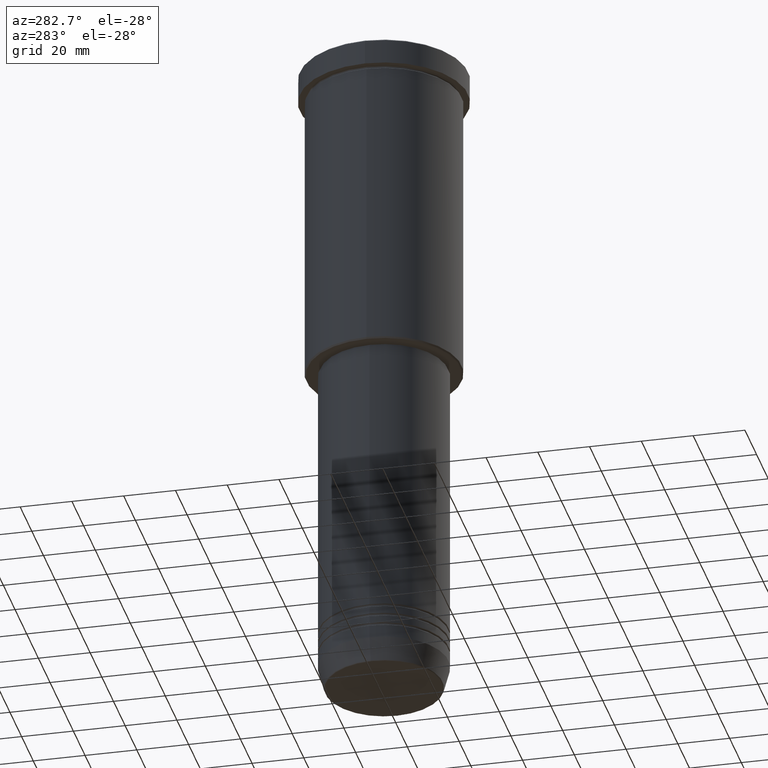
[diagram: clean part render]
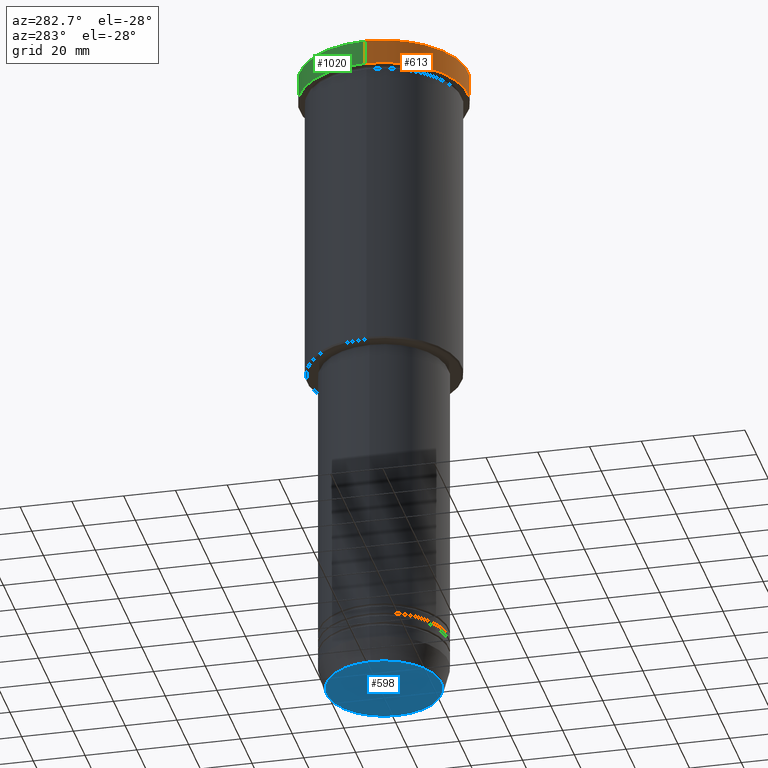
[diagram: same view with three faces highlighted in distinct colors, each labeled with its STEP entity id]
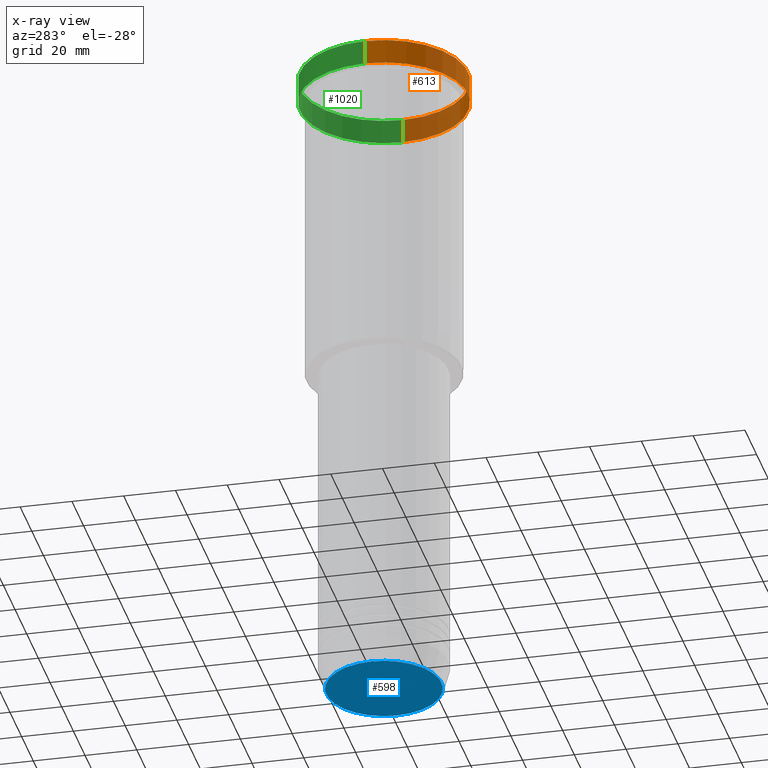
[diagram: x-ray of the same camera — body ghosted, the three highlighted faces saturated]
A machine part, auxiliary view with three faces highlighted in distinct colors.
The next image is the same camera in x-ray (body ghosted, the three faces saturated) — at least one of them is partly hidden behind the body in this view.
Their STEP definitions:

[orange] entity #613 — the highlighted cylindrical surface (partial cylindrical patch) has radius 32.5 mm, axis along (-0, -0, 1).
#14 = VERTEX_POINT ( 'NONE', #193 ) ;
#24 = LINE ( 'NONE', #1012, #587 ) ;
#26 = VERTEX_POINT ( 'NONE', #484 ) ;
#48 = EDGE_CURVE ( 'NONE', #110, #596, #24, .T. ) ;
#53 = FACE_OUTER_BOUND ( 'NONE', #467, .T. ) ;
#82 = DIRECTION ( 'NONE',  ( 1.000000000000000000, 0.000000000000000000, 0.000000000000000000 ) ) ;
#110 = VERTEX_POINT ( 'NONE', #271 ) ;
#130 = CIRCLE ( 'NONE', #900, 32.50000000000000000 ) ;
#193 = CARTESIAN_POINT ( 'NONE',  ( -32.50000000000000000, 3.980102097228898626E-15, -0.4999999999999726885 ) ) ;
#250 = DIRECTION ( 'NONE',  ( -0.000000000000000000, -0.000000000000000000, 1.000000000000000000 ) ) ;
#271 = CARTESIAN_POINT ( 'NONE',  ( 32.50000000000000000, 0.000000000000000000, -9.999999999999992895 ) ) ;
#321 = DIRECTION ( 'NONE',  ( -0.000000000000000000, -0.000000000000000000, 1.000000000000000000 ) ) ;
#328 = CARTESIAN_POINT ( 'NONE',  ( 0.000000000000000000, 0.000000000000000000, 0.000000000000000000 ) ) ;
#368 = DIRECTION ( 'NONE',  ( -0.000000000000000000, -0.000000000000000000, 1.000000000000000000 ) ) ;
#398 = VECTOR ( 'NONE', #250, 1000.000000000000000 ) ;
#400 = EDGE_CURVE ( 'NONE', #596, #14, #1002, .T. ) ;
#460 = LINE ( 'NONE', #818, #398 ) ;
#467 = EDGE_LOOP ( 'NONE', ( #944, #1083, #679, #1033 ) ) ;
#484 = CARTESIAN_POINT ( 'NONE',  ( -32.50000000000000000, 3.980102097228898626E-15, -9.999999999999992895 ) ) ;
#587 = VECTOR ( 'NONE', #368, 1000.000000000000000 ) ;
#596 = VERTEX_POINT ( 'NONE', #910 ) ;
#613 = ADVANCED_FACE ( 'NONE', ( #53 ), #1150, .T. ) ;
#679 = ORIENTED_EDGE ( 'NONE', *, *, #48, .T. ) ;
#710 = CARTESIAN_POINT ( 'NONE',  ( 0.000000000000000000, 0.000000000000000000, -9.999999999999992895 ) ) ;
#765 = EDGE_CURVE ( 'NONE', #26, #14, #460, .T. ) ;
#782 = DIRECTION ( 'NONE',  ( -0.000000000000000000, -0.000000000000000000, 1.000000000000000000 ) ) ;
#818 = CARTESIAN_POINT ( 'NONE',  ( -32.50000000000000000, 3.980102097228898626E-15, 0.000000000000000000 ) ) ;
#871 = DIRECTION ( 'NONE',  ( 1.000000000000000000, 0.000000000000000000, 0.000000000000000000 ) ) ;
#900 = AXIS2_PLACEMENT_3D ( 'NONE', #710, #321, #871 ) ;
#907 = DIRECTION ( 'NONE',  ( 0.000000000000000000, 0.000000000000000000, -1.000000000000000000 ) ) ;
#910 = CARTESIAN_POINT ( 'NONE',  ( 32.50000000000000000, 0.000000000000000000, -0.4999999999999726885 ) ) ;
#944 = ORIENTED_EDGE ( 'NONE', *, *, #765, .F. ) ;
#968 = AXIS2_PLACEMENT_3D ( 'NONE', #328, #782, #977 ) ;
#977 = DIRECTION ( 'NONE',  ( 1.000000000000000000, 0.000000000000000000, 0.000000000000000000 ) ) ;
#993 = CARTESIAN_POINT ( 'NONE',  ( 0.000000000000000000, 0.000000000000000000, -0.4999999999999726885 ) ) ;
#1002 = CIRCLE ( 'NONE', #1139, 32.50000000000000000 ) ;
#1012 = CARTESIAN_POINT ( 'NONE',  ( 32.50000000000000000, 0.000000000000000000, 0.000000000000000000 ) ) ;
#1033 = ORIENTED_EDGE ( 'NONE', *, *, #400, .T. ) ;
#1083 = ORIENTED_EDGE ( 'NONE', *, *, #1108, .T. ) ;
#1108 = EDGE_CURVE ( 'NONE', #26, #110, #130, .T. ) ;
#1139 = AXIS2_PLACEMENT_3D ( 'NONE', #993, #907, #82 ) ;
#1150 = CYLINDRICAL_SURFACE ( 'NONE', #968, 32.50000000000000000 ) ;

[blue] entity #598 — the highlighted planar face has unit normal (0, -0, 1).
#140 = DIRECTION ( 'NONE',  ( 1.000000000000000000, 0.000000000000000000, 0.000000000000000000 ) ) ;
#162 = EDGE_CURVE ( 'NONE', #390, #247, #1082, .T. ) ;
#196 = CARTESIAN_POINT ( 'NONE',  ( 0.000000000000000000, 0.000000000000000000, -260.0000000000000000 ) ) ;
#233 = DIRECTION ( 'NONE',  ( 0.000000000000000000, 0.000000000000000000, -1.000000000000000000 ) ) ;
#247 = VERTEX_POINT ( 'NONE', #953 ) ;
#260 = AXIS2_PLACEMENT_3D ( 'NONE', #196, #841, #1123 ) ;
#390 = VERTEX_POINT ( 'NONE', #1169 ) ;
#406 = ORIENTED_EDGE ( 'NONE', *, *, #162, .T. ) ;
#503 = ORIENTED_EDGE ( 'NONE', *, *, #929, .T. ) ;
#525 = AXIS2_PLACEMENT_3D ( 'NONE', #941, #233, #140 ) ;
#527 = AXIS2_PLACEMENT_3D ( 'NONE', #879, #1140, #1118 ) ;
#598 = ADVANCED_FACE ( 'NONE', ( #755 ), #936, .F. ) ;
#755 = FACE_OUTER_BOUND ( 'NONE', #1024, .T. ) ;
#841 = DIRECTION ( 'NONE',  ( 0.000000000000000000, 0.000000000000000000, -1.000000000000000000 ) ) ;
#879 = CARTESIAN_POINT ( 'NONE',  ( 0.000000000000000000, 0.000000000000000000, -260.0000000000000000 ) ) ;
#929 = EDGE_CURVE ( 'NONE', #247, #390, #1006, .T. ) ;
#936 = PLANE ( 'NONE',  #527 ) ;
#941 = CARTESIAN_POINT ( 'NONE',  ( 0.000000000000000000, 0.000000000000000000, -260.0000000000000000 ) ) ;
#953 = CARTESIAN_POINT ( 'NONE',  ( -22.20479377413040467, 2.748875911406054788E-15, -260.0000000000000000 ) ) ;
#1006 = CIRCLE ( 'NONE', #260, 22.20479377413040467 ) ;
#1024 = EDGE_LOOP ( 'NONE', ( #406, #503 ) ) ;
#1082 = CIRCLE ( 'NONE', #525, 22.20479377413040467 ) ;
#1118 = DIRECTION ( 'NONE',  ( 1.000000000000000000, 0.000000000000000000, 0.000000000000000000 ) ) ;
#1123 = DIRECTION ( 'NONE',  ( 1.000000000000000000, 0.000000000000000000, 0.000000000000000000 ) ) ;
#1140 = DIRECTION ( 'NONE',  ( 0.000000000000000000, -0.000000000000000000, 1.000000000000000000 ) ) ;
#1169 = CARTESIAN_POINT ( 'NONE',  ( 22.20479377413040467, 0.000000000000000000, -260.0000000000000000 ) ) ;

[green] entity #1020 — the highlighted cylindrical surface (partial cylindrical patch) has radius 32.5 mm, axis along (-0, -0, 1).
#13 = DIRECTION ( 'NONE',  ( 1.000000000000000000, 0.000000000000000000, 0.000000000000000000 ) ) ;
#14 = VERTEX_POINT ( 'NONE', #193 ) ;
#24 = LINE ( 'NONE', #1012, #587 ) ;
#26 = VERTEX_POINT ( 'NONE', #484 ) ;
#48 = EDGE_CURVE ( 'NONE', #110, #596, #24, .T. ) ;
#83 = EDGE_CURVE ( 'NONE', #110, #26, #1101, .T. ) ;
#88 = EDGE_LOOP ( 'NONE', ( #1162, #170, #1059, #614 ) ) ;
#110 = VERTEX_POINT ( 'NONE', #271 ) ;
#170 = ORIENTED_EDGE ( 'NONE', *, *, #765, .T. ) ;
#193 = CARTESIAN_POINT ( 'NONE',  ( -32.50000000000000000, 3.980102097228898626E-15, -0.4999999999999726885 ) ) ;
#206 = DIRECTION ( 'NONE',  ( 1.000000000000000000, 0.000000000000000000, 0.000000000000000000 ) ) ;
#250 = DIRECTION ( 'NONE',  ( -0.000000000000000000, -0.000000000000000000, 1.000000000000000000 ) ) ;
#271 = CARTESIAN_POINT ( 'NONE',  ( 32.50000000000000000, 0.000000000000000000, -9.999999999999992895 ) ) ;
#307 = EDGE_CURVE ( 'NONE', #14, #596, #1043, .T. ) ;
#368 = DIRECTION ( 'NONE',  ( -0.000000000000000000, -0.000000000000000000, 1.000000000000000000 ) ) ;
#376 = AXIS2_PLACEMENT_3D ( 'NONE', #392, #834, #13 ) ;
#392 = CARTESIAN_POINT ( 'NONE',  ( 0.000000000000000000, 0.000000000000000000, -9.999999999999992895 ) ) ;
#398 = VECTOR ( 'NONE', #250, 1000.000000000000000 ) ;
#411 = CARTESIAN_POINT ( 'NONE',  ( 0.000000000000000000, 0.000000000000000000, -0.4999999999999726885 ) ) ;
#442 = DIRECTION ( 'NONE',  ( 1.000000000000000000, 0.000000000000000000, 0.000000000000000000 ) ) ;
#460 = LINE ( 'NONE', #818, #398 ) ;
#484 = CARTESIAN_POINT ( 'NONE',  ( -32.50000000000000000, 3.980102097228898626E-15, -9.999999999999992895 ) ) ;
#491 = FACE_OUTER_BOUND ( 'NONE', #88, .T. ) ;
#531 = AXIS2_PLACEMENT_3D ( 'NONE', #564, #933, #206 ) ;
#564 = CARTESIAN_POINT ( 'NONE',  ( 0.000000000000000000, 0.000000000000000000, 0.000000000000000000 ) ) ;
#587 = VECTOR ( 'NONE', #368, 1000.000000000000000 ) ;
#596 = VERTEX_POINT ( 'NONE', #910 ) ;
#614 = ORIENTED_EDGE ( 'NONE', *, *, #48, .F. ) ;
#617 = DIRECTION ( 'NONE',  ( 0.000000000000000000, 0.000000000000000000, -1.000000000000000000 ) ) ;
#690 = AXIS2_PLACEMENT_3D ( 'NONE', #411, #617, #442 ) ;
#765 = EDGE_CURVE ( 'NONE', #26, #14, #460, .T. ) ;
#818 = CARTESIAN_POINT ( 'NONE',  ( -32.50000000000000000, 3.980102097228898626E-15, 0.000000000000000000 ) ) ;
#834 = DIRECTION ( 'NONE',  ( -0.000000000000000000, -0.000000000000000000, 1.000000000000000000 ) ) ;
#850 = CYLINDRICAL_SURFACE ( 'NONE', #531, 32.50000000000000000 ) ;
#910 = CARTESIAN_POINT ( 'NONE',  ( 32.50000000000000000, 0.000000000000000000, -0.4999999999999726885 ) ) ;
#933 = DIRECTION ( 'NONE',  ( -0.000000000000000000, -0.000000000000000000, 1.000000000000000000 ) ) ;
#1012 = CARTESIAN_POINT ( 'NONE',  ( 32.50000000000000000, 0.000000000000000000, 0.000000000000000000 ) ) ;
#1020 = ADVANCED_FACE ( 'NONE', ( #491 ), #850, .T. ) ;
#1043 = CIRCLE ( 'NONE', #690, 32.50000000000000000 ) ;
#1059 = ORIENTED_EDGE ( 'NONE', *, *, #307, .T. ) ;
#1101 = CIRCLE ( 'NONE', #376, 32.50000000000000000 ) ;
#1162 = ORIENTED_EDGE ( 'NONE', *, *, #83, .T. ) ;